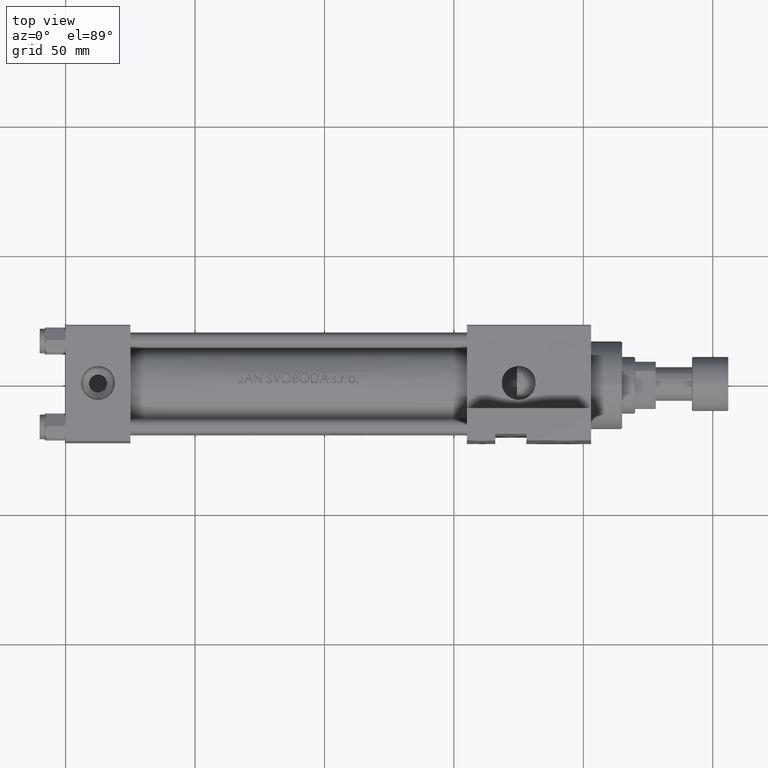
[diagram: clean part render]
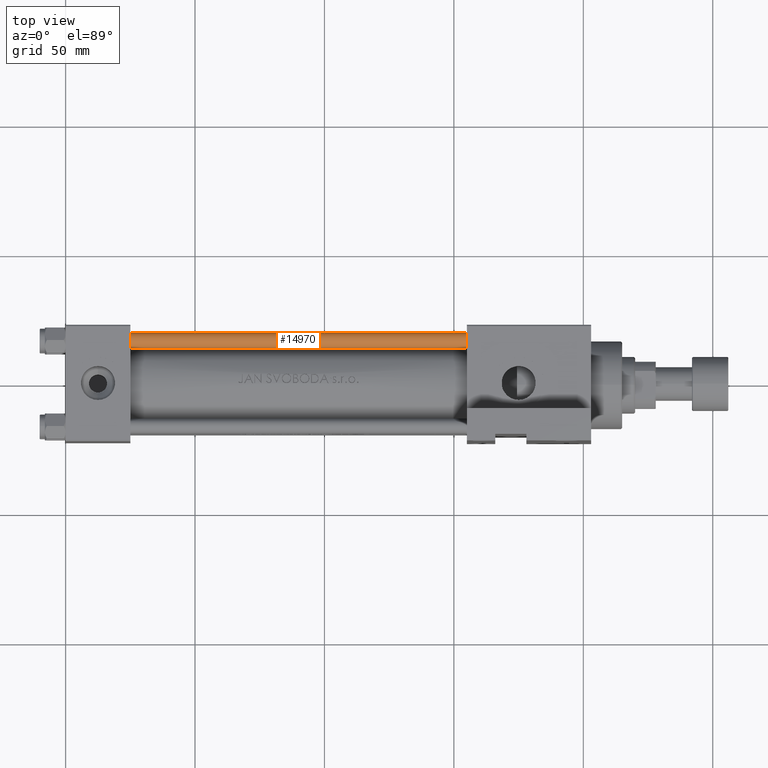
[diagram: same view with one face highlighted and labeled with its STEP entity id]
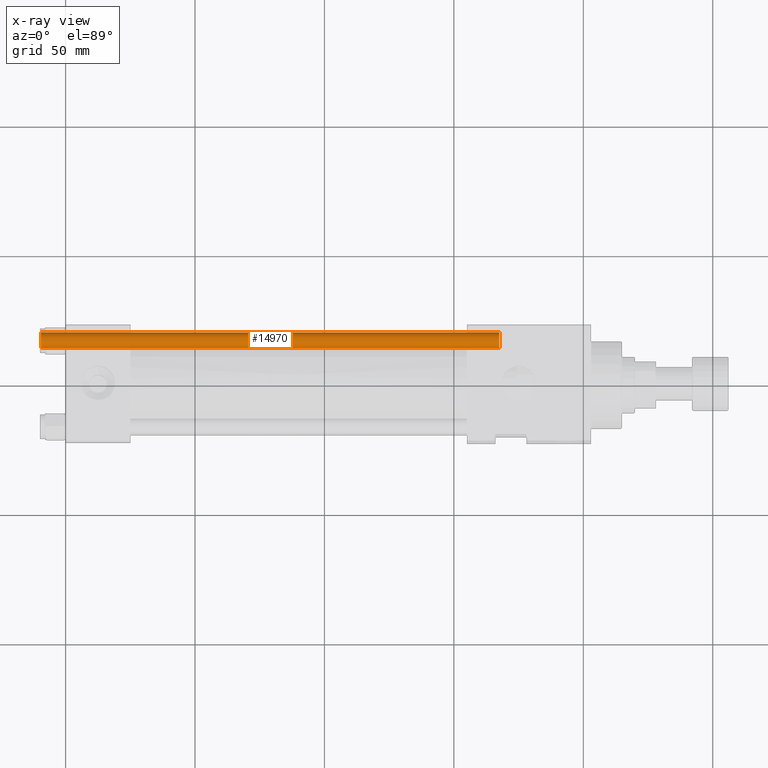
[diagram: x-ray of the same camera — body ghosted, the highlighted face saturated]
A machine part, top view. The second image highlights one B-rep face of the part: STEP entity #14970.
The next image is the same camera in x-ray: the body ghosted, the highlighted face saturated — about 0% of this face is hidden behind the body in this view.
In plain terms, the highlighted cylindrical surface (edge-blend (fillet) strip) has radius 3 mm, axis along (1, -0, 0).
Its self-contained STEP definition (entity closure, byte-faithful):
#1192 = VERTEX_POINT ( 'NONE', #15739 ) ;
#1346 = DIRECTION ( 'NONE',  ( -0.000000000000000000, -0.000000000000000000, -1.000000000000000000 ) ) ;
#1713 = VERTEX_POINT ( 'NONE', #19573 ) ;
#4316 = VECTOR ( 'NONE', #1346, 1000.000000000000000 ) ;
#5444 = CARTESIAN_POINT ( 'NONE',  ( -3.000000000000000444, 0.000000000000000000, 0.5000000000000281997 ) ) ;
#5657 = CARTESIAN_POINT ( 'NONE',  ( 0.000000000000000000, 0.000000000000000000, 177.5000000000000000 ) ) ;
#5727 = VERTEX_POINT ( 'NONE', #18210 ) ;
#6257 = ORIENTED_EDGE ( 'NONE', *, *, #40246, .F. ) ;
#11541 = EDGE_CURVE ( 'NONE', #5727, #15093, #20476, .T. ) ;
#13609 = CIRCLE ( 'NONE', #41750, 3.000000000000000444 ) ;
#14547 = CYLINDRICAL_SURFACE ( 'NONE', #22184, 3.000000000000000444 ) ;
#14970 = ADVANCED_FACE ( 'NONE', ( #26139 ), #14547, .T. ) ;
#15093 = VERTEX_POINT ( 'NONE', #5444 ) ;
#15372 = DIRECTION ( 'NONE',  ( 1.000000000000000000, 0.000000000000000000, 0.000000000000000000 ) ) ;
#15739 = CARTESIAN_POINT ( 'NONE',  ( 3.000000000000000444, 3.673940397442060361E-16, 0.5000000000000281997 ) ) ;
#15935 = CIRCLE ( 'NONE', #37666, 3.000000000000000444 ) ;
#18210 = CARTESIAN_POINT ( 'NONE',  ( -3.000000000000000444, 0.000000000000000000, 177.5000000000000000 ) ) ;
#19573 = CARTESIAN_POINT ( 'NONE',  ( 3.000000000000000444, 3.673940397442060361E-16, 177.5000000000000000 ) ) ;
#20476 = LINE ( 'NONE', #35839, #4316 ) ;
#22184 = AXIS2_PLACEMENT_3D ( 'NONE', #25888, #41229, #30172 ) ;
#22686 = CARTESIAN_POINT ( 'NONE',  ( 0.000000000000000000, 0.000000000000000000, 0.5000000000000281997 ) ) ;
#25888 = CARTESIAN_POINT ( 'NONE',  ( 0.000000000000000000, 0.000000000000000000, 178.0000000000000000 ) ) ;
#26139 = FACE_OUTER_BOUND ( 'NONE', #48042, .T. ) ;
#27176 = ORIENTED_EDGE ( 'NONE', *, *, #11541, .T. ) ;
#30016 = DIRECTION ( 'NONE',  ( -0.000000000000000000, -0.000000000000000000, 1.000000000000000000 ) ) ;
#30172 = DIRECTION ( 'NONE',  ( -1.000000000000000000, 0.000000000000000000, 0.000000000000000000 ) ) ;
#31138 = EDGE_CURVE ( 'NONE', #1713, #5727, #15935, .T. ) ;
#32505 = CARTESIAN_POINT ( 'NONE',  ( 3.000000000000000444, 3.673940397442060361E-16, 178.0000000000000000 ) ) ;
#32752 = DIRECTION ( 'NONE',  ( -0.000000000000000000, -0.000000000000000000, -1.000000000000000000 ) ) ;
#32935 = ORIENTED_EDGE ( 'NONE', *, *, #31138, .T. ) ;
#35839 = CARTESIAN_POINT ( 'NONE',  ( -3.000000000000000444, 0.000000000000000000, 178.0000000000000000 ) ) ;
#36371 = DIRECTION ( 'NONE',  ( 0.000000000000000000, 0.000000000000000000, -1.000000000000000000 ) ) ;
#36617 = DIRECTION ( 'NONE',  ( 1.000000000000000000, 0.000000000000000000, 0.000000000000000000 ) ) ;
#37158 = EDGE_CURVE ( 'NONE', #15093, #1192, #13609, .T. ) ;
#37666 = AXIS2_PLACEMENT_3D ( 'NONE', #5657, #36371, #36617 ) ;
#38622 = VECTOR ( 'NONE', #32752, 1000.000000000000000 ) ;
#40246 = EDGE_CURVE ( 'NONE', #1713, #1192, #40552, .T. ) ;
#40552 = LINE ( 'NONE', #32505, #38622 ) ;
#41229 = DIRECTION ( 'NONE',  ( -0.000000000000000000, -0.000000000000000000, -1.000000000000000000 ) ) ;
#41750 = AXIS2_PLACEMENT_3D ( 'NONE', #22686, #30016, #15372 ) ;
#46343 = ORIENTED_EDGE ( 'NONE', *, *, #37158, .T. ) ;
#48042 = EDGE_LOOP ( 'NONE', ( #6257, #32935, #27176, #46343 ) ) ;